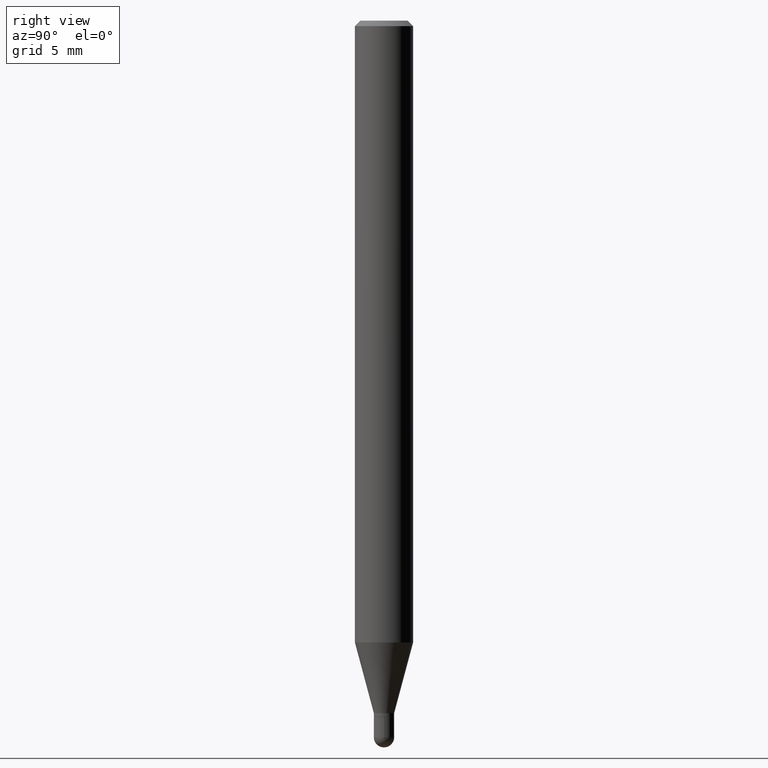
[diagram: clean part render]
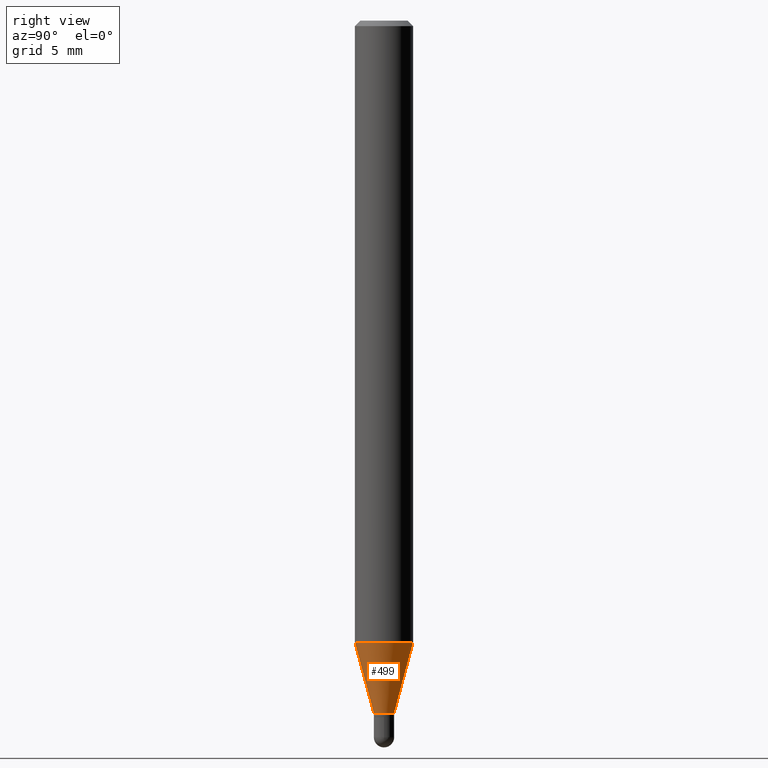
[diagram: same view with one face highlighted and labeled with its STEP entity id]
A machine part, right view. The second image highlights one B-rep face of the part: STEP entity #499.
In plain terms, the highlighted conical surface has half-angle 15 deg.
Its self-contained STEP definition (entity closure, byte-faithful):
#5 = ORIENTED_EDGE ( 'NONE', *, *, #299, .T. ) ;
#21 = DIRECTION ( 'NONE',  ( 1.839019923739601893E-15, 0.2588190451025252359, 0.9659258262890670910 ) ) ;
#33 = CONICAL_SURFACE ( 'NONE', #238, 0.02754999999999992524, 0.2617993877991505181 ) ;
#44 = ORIENTED_EDGE ( 'NONE', *, *, #94, .F. ) ;
#49 = LINE ( 'NONE', #416, #345 ) ;
#55 = CARTESIAN_POINT ( 'NONE',  ( -1.923806217702102502E-16, -0.02755000000000647556, -1.875499999999999723 ) ) ;
#66 = DIRECTION ( 'NONE',  ( -6.982962677686265922E-15, -1.000000000000000000, 0.000000000000000000 ) ) ;
#83 = CARTESIAN_POINT ( 'NONE',  ( -5.499083108677525221E-16, -0.07875000000000589861, -1.684418998652473354 ) ) ;
#94 = EDGE_CURVE ( 'NONE', #98, #101, #417, .T. ) ;
#98 = VERTEX_POINT ( 'NONE', #335 ) ;
#101 = VERTEX_POINT ( 'NONE', #83 ) ;
#106 = EDGE_CURVE ( 'NONE', #313, #231, #49, .T. ) ;
#149 = ORIENTED_EDGE ( 'NONE', *, *, #106, .T. ) ;
#155 = AXIS2_PLACEMENT_3D ( 'NONE', #457, #421, #426 ) ;
#176 = ORIENTED_EDGE ( 'NONE', *, *, #325, .F. ) ;
#191 = CARTESIAN_POINT ( 'NONE',  ( 4.586461700635232727E-29, -6.548294796819313301E-15, -1.875499999999999723 ) ) ;
#228 = DIRECTION ( 'NONE',  ( -6.982962677686265922E-15, -1.000000000000000000, 0.000000000000000000 ) ) ;
#231 = VERTEX_POINT ( 'NONE', #497 ) ;
#238 = AXIS2_PLACEMENT_3D ( 'NONE', #191, #360, #66 ) ;
#265 = AXIS2_PLACEMENT_3D ( 'NONE', #351, #347, #228 ) ;
#299 = EDGE_CURVE ( 'NONE', #98, #313, #423, .T. ) ;
#304 = CARTESIAN_POINT ( 'NONE',  ( 3.776534640565365081E-16, 0.02754999999999337840, -1.875499999999999723 ) ) ;
#313 = VERTEX_POINT ( 'NONE', #304 ) ;
#325 = EDGE_CURVE ( 'NONE', #101, #231, #411, .T. ) ;
#335 = CARTESIAN_POINT ( 'NONE',  ( -1.923806217702102502E-16, -0.02755000000000647556, -1.875499999999999723 ) ) ;
#345 = VECTOR ( 'NONE', #21, 39.37007874015748854 ) ;
#347 = DIRECTION ( 'NONE',  ( -2.445460784129690080E-29, 3.491492826883132215E-15, 1.000000000000000000 ) ) ;
#348 = EDGE_LOOP ( 'NONE', ( #5, #149, #176, #44 ) ) ;
#351 = CARTESIAN_POINT ( 'NONE',  ( 4.586461700635232727E-29, -6.548294796819313301E-15, -1.875499999999999723 ) ) ;
#360 = DIRECTION ( 'NONE',  ( -2.445460784129690080E-29, 3.491492826883132215E-15, 1.000000000000000000 ) ) ;
#411 = CIRCLE ( 'NONE', #155, 0.07875000000000000056 ) ;
#416 = CARTESIAN_POINT ( 'NONE',  ( 1.957545237019528979E-16, 0.02754999999999337840, -1.875499999999999723 ) ) ;
#417 = LINE ( 'NONE', #55, #462 ) ;
#421 = DIRECTION ( 'NONE',  ( -2.445460784129690080E-29, 3.491492826883132215E-15, 1.000000000000000000 ) ) ;
#423 = CIRCLE ( 'NONE', #265, 0.02754999999999992524 ) ;
#426 = DIRECTION ( 'NONE',  ( -6.982962677686264344E-15, -1.000000000000000000, 3.469013325287953293E-15 ) ) ;
#434 = FACE_OUTER_BOUND ( 'NONE', #348, .T. ) ;
#451 = DIRECTION ( 'NONE',  ( -1.807323732225331717E-15, -0.2588190451025184080, 0.9659258262890689783 ) ) ;
#457 = CARTESIAN_POINT ( 'NONE',  ( 4.119180605247625477E-29, -5.881136851260779316E-15, -1.684418998652473798 ) ) ;
#462 = VECTOR ( 'NONE', #451, 39.37007874015748854 ) ;
#497 = CARTESIAN_POINT ( 'NONE',  ( 5.595524044111199211E-16, 0.07874999999999410250, -1.684418998652474020 ) ) ;
#499 = ADVANCED_FACE ( 'NONE', ( #434 ), #33, .T. ) ;